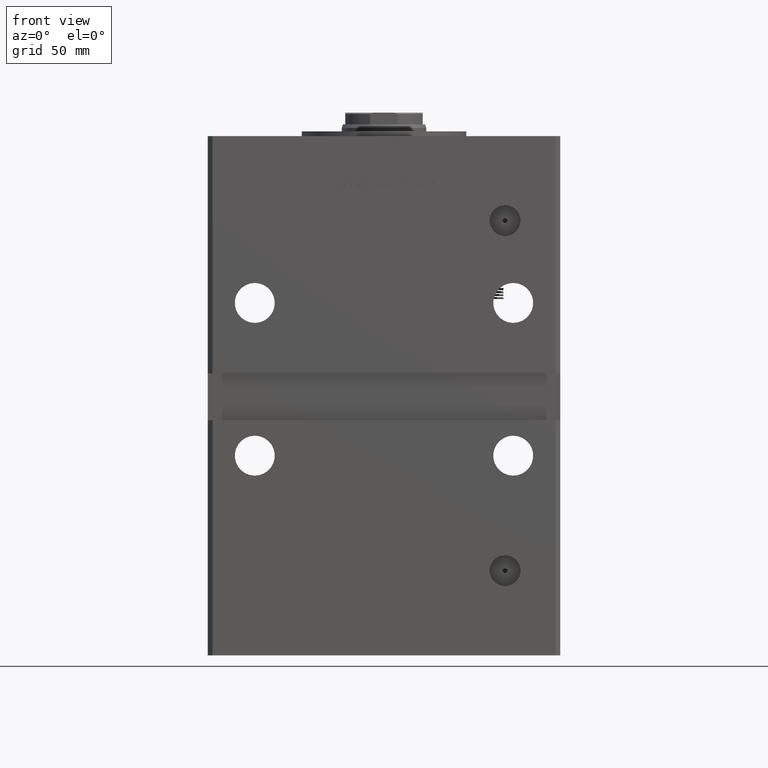
[diagram: clean part render]
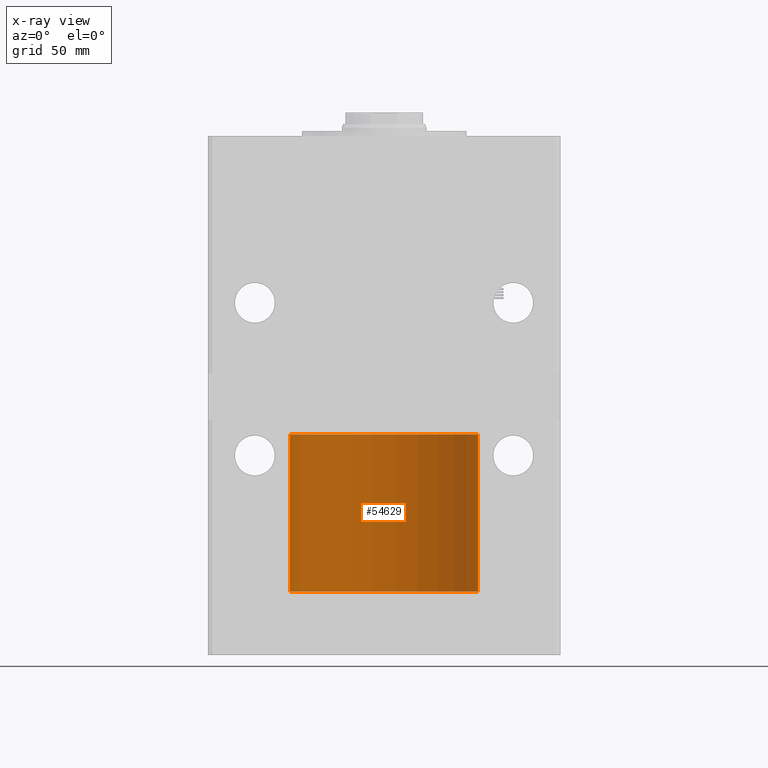
[diagram: x-ray — body ghosted, one internal face saturated and labeled with its STEP entity id]
A machine part, front view, then the same camera in x-ray: the body is ghosted and one INTERNAL B-rep face — a face not visible from any outside direction — is saturated and labeled: STEP entity #54629.
In plain terms, the highlighted cylindrical surface (partial cylindrical patch) has radius 40 mm, axis along (0, -0, 1).
Its self-contained STEP definition (entity closure, byte-faithful):
#772 = DIRECTION ( 'NONE',  ( 9.892608450469889463E-18, 1.000000000000000000, 0.000000000000000000 ) ) ;
#2310 = VERTEX_POINT ( 'NONE', #49366 ) ;
#4582 = VECTOR ( 'NONE', #19185, 1000.000000000000000 ) ;
#5058 = DIRECTION ( 'NONE',  ( 1.000000000000000000, -9.892608450469889463E-18, -0.000000000000000000 ) ) ;
#6198 = CARTESIAN_POINT ( 'NONE',  ( -137.0000000000000000, 40.00000000000000000, 0.000000000000000000 ) ) ;
#7075 = DIRECTION ( 'NONE',  ( 1.000000000000000000, -9.892608450469889463E-18, -0.000000000000000000 ) ) ;
#7288 = VERTEX_POINT ( 'NONE', #44788 ) ;
#7339 = DIRECTION ( 'NONE',  ( 0.000000000000000000, 1.000000000000000000, 0.000000000000000000 ) ) ;
#8463 = ORIENTED_EDGE ( 'NONE', *, *, #50922, .F. ) ;
#9626 = CIRCLE ( 'NONE', #41185, 40.00000000000000000 ) ;
#10424 = EDGE_CURVE ( 'NONE', #7288, #20743, #27082, .T. ) ;
#11221 = VECTOR ( 'NONE', #42282, 1000.000000000000000 ) ;
#13747 = DIRECTION ( 'NONE',  ( 1.000000000000000000, -9.892608450469889463E-18, -0.000000000000000000 ) ) ;
#18064 = ORIENTED_EDGE ( 'NONE', *, *, #21602, .T. ) ;
#19185 = DIRECTION ( 'NONE',  ( 1.000000000000000000, -9.892608450469889463E-18, -0.000000000000000000 ) ) ;
#20743 = VERTEX_POINT ( 'NONE', #6198 ) ;
#20769 = EDGE_CURVE ( 'NONE', #34896, #2310, #28768, .T. ) ;
#21602 = EDGE_CURVE ( 'NONE', #7288, #34896, #24762, .T. ) ;
#24762 = CIRCLE ( 'NONE', #53592, 39.99999999999999289 ) ;
#27082 = LINE ( 'NONE', #43995, #4582 ) ;
#27683 = EDGE_LOOP ( 'NONE', ( #18064, #53677, #8463, #36777 ) ) ;
#28768 = LINE ( 'NONE', #46795, #11221 ) ;
#30382 = CARTESIAN_POINT ( 'NONE',  ( -204.0000000000000284, -39.99999999999999289, 4.898587196589412237E-15 ) ) ;
#31024 = DIRECTION ( 'NONE',  ( 0.000000000000000000, 1.000000000000000000, 0.000000000000000000 ) ) ;
#33885 = CARTESIAN_POINT ( 'NONE',  ( -204.0000000000000284, 2.833686479190506087E-16, 0.000000000000000000 ) ) ;
#34896 = VERTEX_POINT ( 'NONE', #30382 ) ;
#36777 = ORIENTED_EDGE ( 'NONE', *, *, #10424, .F. ) ;
#41185 = AXIS2_PLACEMENT_3D ( 'NONE', #43157, #5058, #31024 ) ;
#42282 = DIRECTION ( 'NONE',  ( 1.000000000000000000, -9.892608450469889463E-18, -0.000000000000000000 ) ) ;
#43157 = CARTESIAN_POINT ( 'NONE',  ( -137.0000000000000000, -3.794361182624322087E-16, 0.000000000000000000 ) ) ;
#43995 = CARTESIAN_POINT ( 'NONE',  ( 3.957043380187955169E-16, 39.99999999999999289, 0.000000000000000000 ) ) ;
#44751 = CYLINDRICAL_SURFACE ( 'NONE', #49258, 39.99999999999999289 ) ;
#44788 = CARTESIAN_POINT ( 'NONE',  ( -204.0000000000000284, 39.99999999999999289, 0.000000000000000000 ) ) ;
#46795 = CARTESIAN_POINT ( 'NONE',  ( -3.957043380187955169E-16, -39.99999999999999289, 4.898587196589412237E-15 ) ) ;
#49258 = AXIS2_PLACEMENT_3D ( 'NONE', #53212, #13747, #772 ) ;
#49366 = CARTESIAN_POINT ( 'NONE',  ( -137.0000000000000000, -40.00000000000000000, 4.898587196589413026E-15 ) ) ;
#50922 = EDGE_CURVE ( 'NONE', #20743, #2310, #9626, .T. ) ;
#52383 = FACE_OUTER_BOUND ( 'NONE', #27683, .T. ) ;
#53212 = CARTESIAN_POINT ( 'NONE',  ( 0.000000000000000000, -1.734723475976807094E-15, 0.000000000000000000 ) ) ;
#53592 = AXIS2_PLACEMENT_3D ( 'NONE', #33885, #7075, #7339 ) ;
#53677 = ORIENTED_EDGE ( 'NONE', *, *, #20769, .T. ) ;
#54629 = ADVANCED_FACE ( 'NONE', ( #52383 ), #44751, .T. ) ;